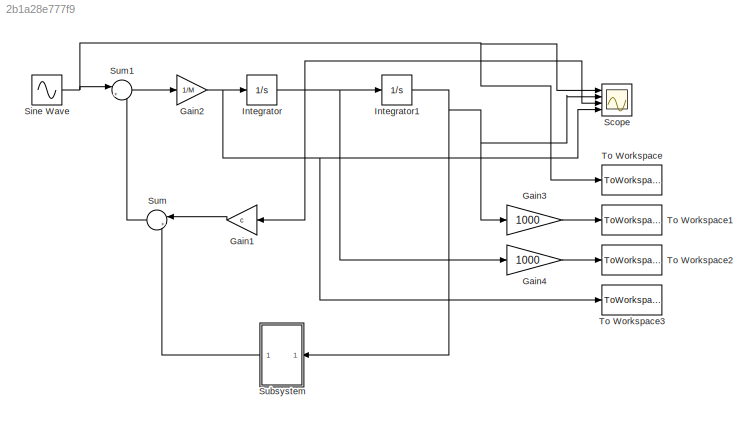
MODEL slx_2b1a28e777f9
KIND model
CONFIG AbsTol = auto
CONFIG EnableMultiTasking = off
CONFIG FixedStep = auto
CONFIG MaxStep = auto
CONFIG MinStep = auto
CONFIG RelTol = 1e-3
CONFIG SampleTimeConstraint = Unconstrained
CONFIG Solver = VariableStepAuto
CONFIG SolverName = VariableStepAuto
CONFIG StartTime = 0.0
CONFIG StopTime = 2.56
BLOCK [Gain] Gain1
  Gain = c
  OutDataTypeStr = Inherit: Inherit via internal rule
  ParamDataTypeStr = Inherit: Inherit via internal rule
  SaturateOnIntegerOverflow = off
BLOCK [Gain] Gain2
  Gain = 1/M
  OutDataTypeStr = Inherit: Inherit via internal rule
  ParamDataTypeStr = Inherit: Inherit via internal rule
  SaturateOnIntegerOverflow = off
BLOCK [Gain] Gain3
  Gain = 1000
  OutDataTypeStr = Inherit: Inherit via internal rule
  ParamDataTypeStr = Inherit: Inherit via internal rule
  SaturateOnIntegerOverflow = off
BLOCK [Gain] Gain4
  Gain = 1000
  OutDataTypeStr = Inherit: Inherit via internal rule
  ParamDataTypeStr = Inherit: Inherit via internal rule
  SaturateOnIntegerOverflow = off
BLOCK [Integrator] Integrator
  Ports = [1, 1]
BLOCK [Integrator] Integrator1
  Ports = [1, 1]
BLOCK [Scope] Scope
  Floating = off
  NumInputPorts = 4
  Ports = [4]
  ScopeSpecificationString = Simulink.scopes.TimeScopeBlockCfg('CurrentConfiguration', extmgr.ConfigurationSet(extmgr.Configuration('Core','General UI',true),extmgr.Configuration('Core','Source UI',true),extmgr.Configuration('Sources','WiredSimulink',true),extmgr.Configuration('Visuals','Time Domain',true,'SerializedDisplays',{struct('MinYLimReal','-1.25','MaxYLimReal','1.25','YLabelReal','','MinYLimMag','0.00000','MaxYLimMag...<+3408ch>
BLOCK [Sin] Sine Wave
  Frequency = 31.4
  Ports = [0, 1]
  SampleTime = 0.001
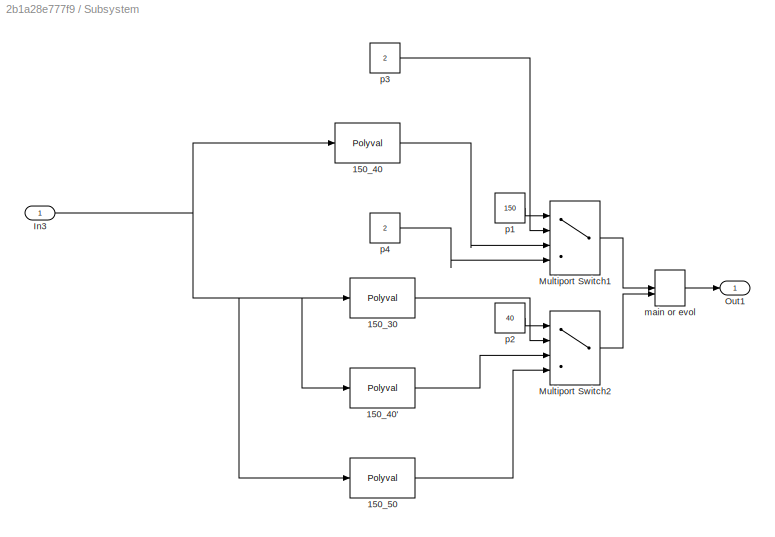
BLOCK [SubSystem] Subsystem
  Ports = [1, 1]
  RequestExecContextInheritance = off
BLOCK [Polyval] Subsystem/150_30
  Coefs = [ -5.674e+09*6, 1.562e+09*5, -1.485e+08*4, 6.452e+06*3, -1.365e+05*2, 3607 ]
BLOCK [Polyval] Subsystem/150_40
  Coefs = [ -4.597e+09*6, 1.259e+09*5, -1.21e+08*4, 5.755e+06*3, -1.495e+05*2, 4352 ]
BLOCK [Polyval] Subsystem/150_40'
  Coefs = [ -4.597e+09*6, 1.259e+09*5, -1.21e+08*4, 5.755e+06*3, -1.495e+05*2, 4352 ]
BLOCK [Polyval] Subsystem/150_50
  Coefs = [ -1.771e+09*6, 3.133e+08*5, -5.807e+06*4, -4.747e+05*3, 187.7*2, 3121 ]
BLOCK [Inport] Subsystem/In3
  IconDisplay = Port number
BLOCK [MultiPortSwitch] Subsystem/Multiport Switch1
  DataPortIndices = {200,150,100}
  DataPortOrder = Specify indices
  InputSameDT = off
  Ports = [4, 1]
  SaturateOnIntegerOverflow = off
BLOCK [MultiPortSwitch] Subsystem/Multiport Switch2
  DataPortIndices = {30,40,50}
  DataPortOrder = Specify indices
  InputSameDT = off
  Ports = [4, 1]
  SaturateOnIntegerOverflow = off
BLOCK [Outport] Subsystem/Out1
  IconDisplay = Port number
BLOCK [ManualSwitch] Subsystem/main or evol
  CurrentSetting = 0
BLOCK [Constant] Subsystem/p1
  Value = 150
BLOCK [Constant] Subsystem/p2
  Value = 40
BLOCK [Constant] Subsystem/p3
  Value = 2
BLOCK [Constant] Subsystem/p4
  Value = 2
BLOCK [Sum] Sum
  IconShape = round
  InputSameDT = off
  Inputs = |++
  OutDataTypeStr = Inherit: Inherit via internal rule
  Ports = [2, 1]
  SaturateOnIntegerOverflow = off
BLOCK [Sum] Sum1
  IconShape = round
  InputSameDT = off
  Inputs = |+-
  OutDataTypeStr = Inherit: Inherit via internal rule
  Ports = [2, 1]
  SaturateOnIntegerOverflow = off
BLOCK [ToWorkspace] To Workspace
  FixptAsFi = on
  MaxDataPoints = inf
  Ports = [1]
  SampleTime = -1
  Save2DSignal = 3-D array (concatenate along third dimension)
  SaveFormat = Timeseries
  VariableName = F
BLOCK [ToWorkspace] To Workspace1
  FixptAsFi = on
  MaxDataPoints = inf
  Ports = [1]
  SampleTime = -1
  Save2DSignal = 3-D array (concatenate along third dimension)
  SaveFormat = Timeseries
  VariableName = x
BLOCK [ToWorkspace] To Workspace2
  FixptAsFi = on
  MaxDataPoints = inf
  Ports = [1]
  SampleTime = -1
  Save2DSignal = 3-D array (concatenate along third dimension)
  SaveFormat = Timeseries
  VariableName = v
BLOCK [ToWorkspace] To Workspace3
  FixptAsFi = on
  MaxDataPoints = inf
  Ports = [1]
  SampleTime = -1
  Save2DSignal = 3-D array (concatenate along third dimension)
  SaveFormat = Timeseries
  VariableName = a
LINE Gain1:1 -> Sum:1
NET Gain2:1 -> Integrator:1, Scope:4, To Workspace3:1
LINE Gain3:1 -> To Workspace1:1
LINE Gain4:1 -> To Workspace2:1
NET Integrator1:1 -> Gain3:1, Scope:2, Subsystem:1
NET Integrator:1 -> Gain1:1, Gain4:1, Integrator1:1, Scope:3
NET Sine Wave:1 -> Scope:1, Sum1:1, To Workspace:1
LINE Subsystem/150_30:1 -> Subsystem/Multiport Switch2:2
LINE Subsystem/150_40':1 -> Subsystem/Multiport Switch2:3
LINE Subsystem/150_40:1 -> Subsystem/Multiport Switch1:3
LINE Subsystem/150_50:1 -> Subsystem/Multiport Switch2:4
NET Subsystem/In3:1 -> Subsystem/150_30:1, Subsystem/150_40':1, Subsystem/150_40:1, Subsystem/150_50:1
LINE Subsystem/Multiport Switch1:1 -> Subsystem/main or evol:1
LINE Subsystem/Multiport Switch2:1 -> Subsystem/main or evol:2
LINE Subsystem/main or evol:1 -> Subsystem/Out1:1
LINE Subsystem/p1:1 -> Subsystem/Multiport Switch1:1
LINE Subsystem/p2:1 -> Subsystem/Multiport Switch2:1
LINE Subsystem/p3:1 -> Subsystem/Multiport Switch1:2
LINE Subsystem/p4:1 -> Subsystem/Multiport Switch1:4
LINE Subsystem:1 -> Sum:2
LINE Sum1:1 -> Gain2:1
LINE Sum:1 -> Sum1:2
note: NET lines group one-source signal fan-out (src -> all destinations, sorted); 1:1 wires keep LINE
